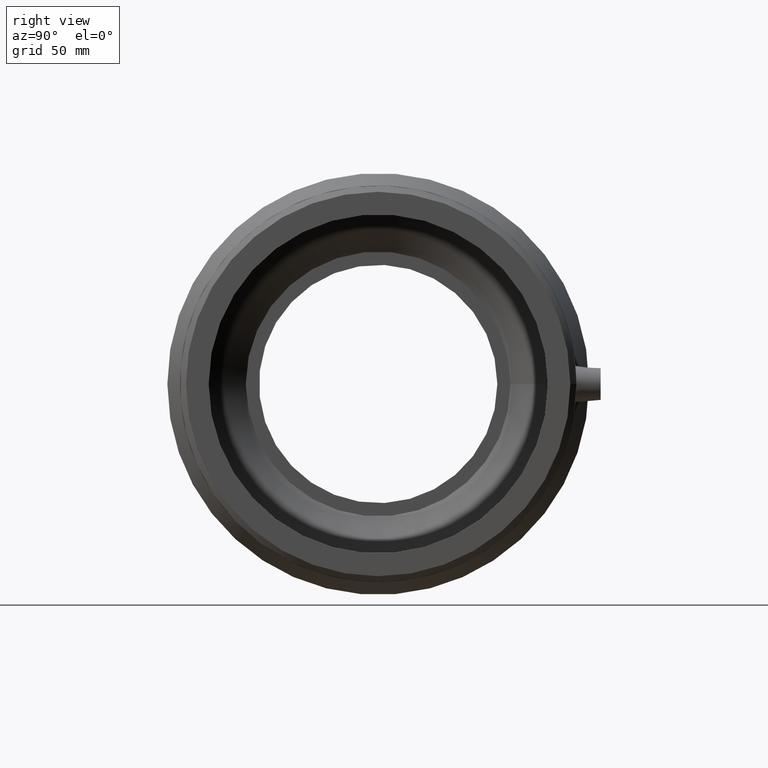
[diagram: clean part render]
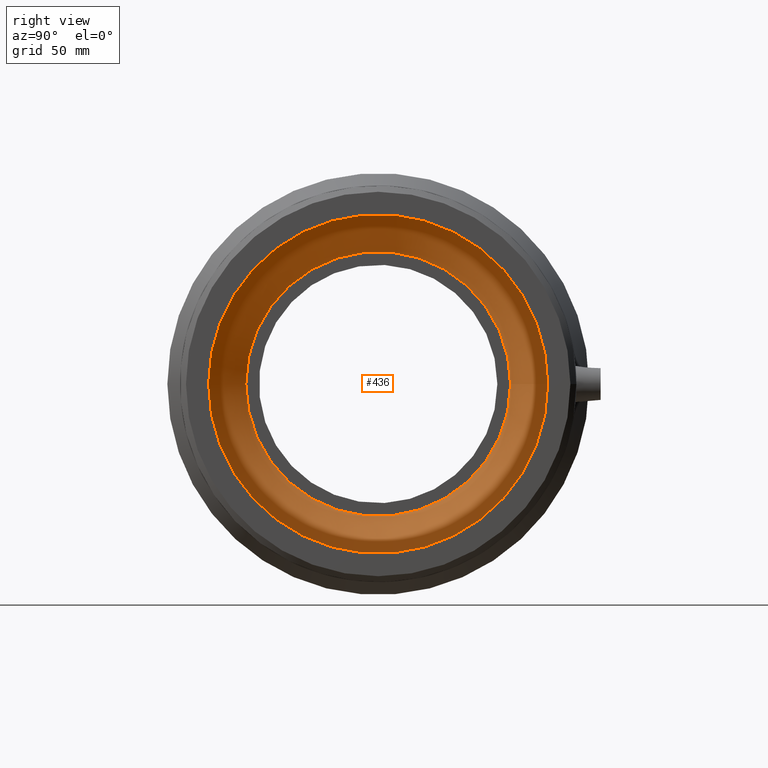
[diagram: same view with one face highlighted and labeled with its STEP entity id]
A machine part, right view. The second image highlights one B-rep face of the part: STEP entity #436.
In plain terms, the highlighted conical surface has half-angle 56.121 deg.
Its self-contained STEP definition (entity closure, byte-faithful):
#27=CONICAL_SURFACE('',#507,71.25,56.1214601948904);
#60=FACE_BOUND('',#185,.T.);
#114=FACE_OUTER_BOUND('',#184,.T.);
#184=EDGE_LOOP('',(#377));
#185=EDGE_LOOP('',(#378));
#229=CIRCLE('',#506,80.);
#230=CIRCLE('',#508,62.5);
#268=VERTEX_POINT('',#836);
#269=VERTEX_POINT('',#839);
#307=EDGE_CURVE('',#268,#268,#229,.T.);
#308=EDGE_CURVE('',#269,#269,#230,.T.);
#377=ORIENTED_EDGE('',*,*,#307,.T.);
#378=ORIENTED_EDGE('',*,*,#308,.F.);
#436=ADVANCED_FACE('',(#114,#60),#27,.F.);
#506=AXIS2_PLACEMENT_3D('',#837,#644,#645);
#507=AXIS2_PLACEMENT_3D('',#838,#646,#647);
#508=AXIS2_PLACEMENT_3D('',#840,#648,#649);
#644=DIRECTION('center_axis',(1.,0.,0.));
#645=DIRECTION('ref_axis',(0.,0.,-1.));
#646=DIRECTION('center_axis',(1.,0.,0.));
#647=DIRECTION('ref_axis',(0.,1.,0.));
#648=DIRECTION('center_axis',(1.,0.,0.));
#649=DIRECTION('ref_axis',(0.,0.,-1.));
#836=CARTESIAN_POINT('',(3.5,80.,0.));
#837=CARTESIAN_POINT('Origin',(3.5,0.,0.));
#838=CARTESIAN_POINT('Origin',(-2.37500000000001,0.,0.));
#839=CARTESIAN_POINT('',(-8.25,62.5,0.));
#840=CARTESIAN_POINT('Origin',(-8.25,0.,0.));